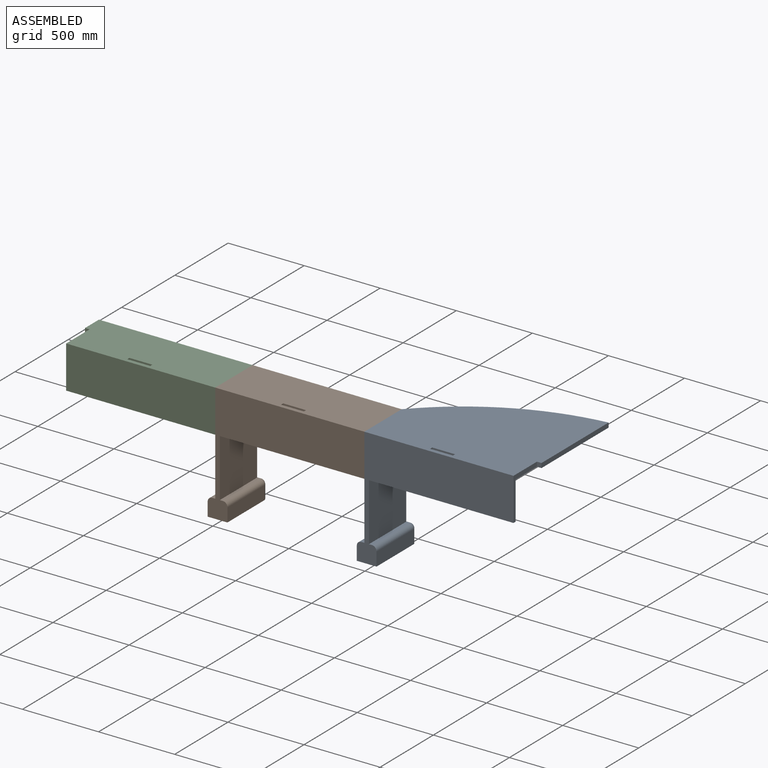
[diagram: assembled view]
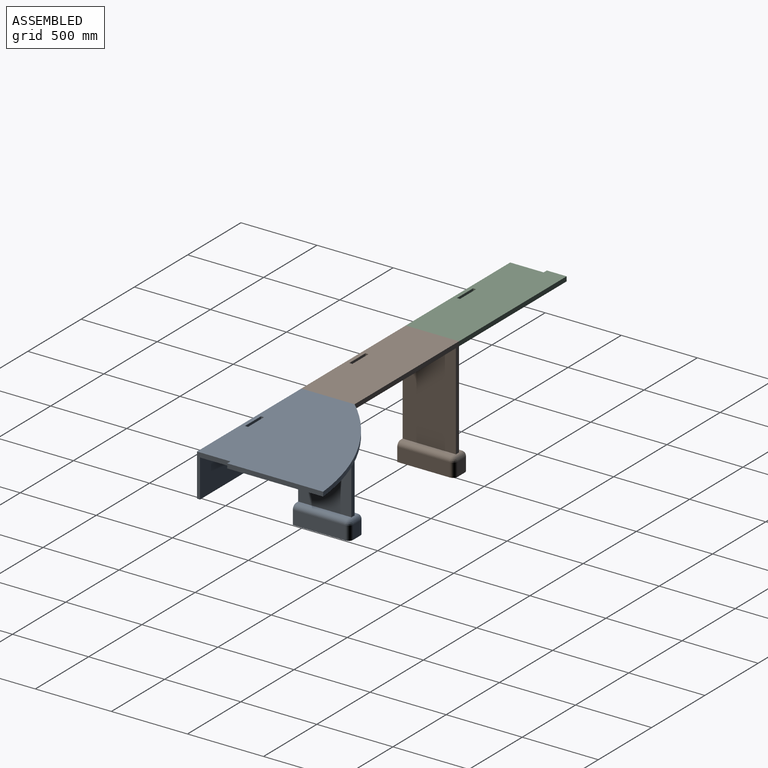
[diagram: assembled view, second angle]
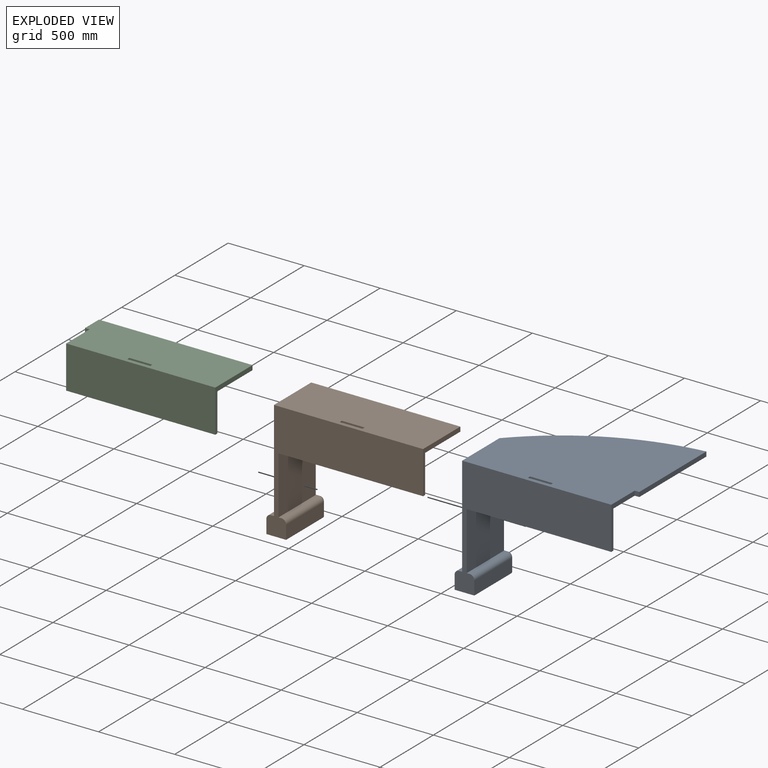
[diagram: exploded view]
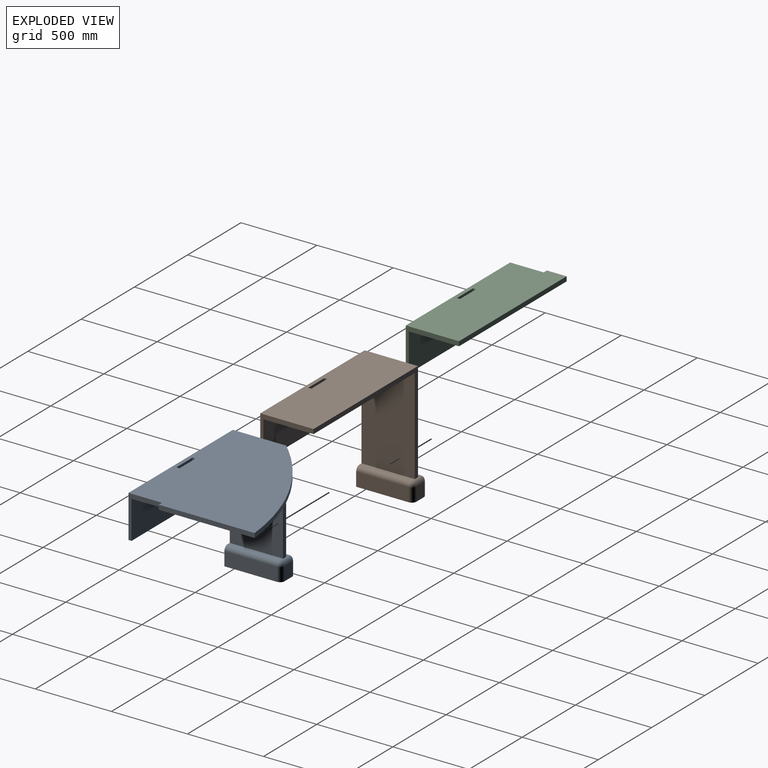
[diagram: exploded view, second angle]
ASSEMBLY  parts=3 mates=2
PART A: 29 faces, bbox 1060x850x780 mm
  f0: plane 345x20mm, normal (0,0,1), area 6900mm2, adj f2,f6,f22,f26
  f1: plane 630.42x30mm, normal (0,1,0), area 18912.6mm2, adj f2,f5,f8,f26
  f2: plane 660.42x350mm, normal (-1,0,0), area 231000.7mm2, adj f0,f1,f4,f6,f16,f26
  f3: plane 280x220mm, normal (1,0,0), area 11600mm2, adj f4,f5,f6,f14,f15,f17
  f4: plane 1010x850mm, normal (0,0,1), area 673926mm2, adj f2,f3,f6,f7,f10,f11,f12,f13
  f5: plane 1010x830mm, normal (0,0,-1), area 644426mm2, adj f1,f3,f7,f8,f10,f11,f12,f13
  f6: plane 1030x780mm, normal (0,-1,0), area 301013.7mm2, adj f0,f2,f3,f4,f8,f9,f14,f18
  f7: plane 630x30mm, normal (1,0,0), area 18900mm2, adj f4,f5,f16,f17
  f8: plane 630.42x350mm, normal (1,0,0), area 215500.7mm2, adj f1,f5,f6,f14,f15,f19,f26
  f9: plane 375x130mm, normal (0,0,-1), area 48363.7mm2, adj f6,f18,f20,f21,f23,f28
  f10: plane 150x30mm, normal (0,1,0), area 4500mm2, adj f4,f5,f11,f13
  f11: plane 30x20mm, normal (-1,0,0), area 600mm2, adj f4,f5,f10,f12
  f12: plane 150x30mm, normal (0,-1,0), area 4500mm2, adj f4,f5,f11,f13
  f13: plane 30x20mm, normal (1,0,0), area 600mm2, adj f4,f5,f10,f12
  f14: plane 950x20mm, normal (0,0,-1), area 19000mm2, adj f3,f6,f8,f15
  f15: plane 950x250mm, normal (0,1,0), area 237500mm2, adj f3,f5,f8,f14
  f16: cylinder r=1600mm len=1010mm, axis (0,0,1), area 34550.7mm2, adj f2,f4,f5,f7
  f17: plane 30x30mm, normal (0,-1,0), area 900mm2, adj f3,f4,f5,f7
  f18: plane 345x90mm, normal (1,0,0), area 31050mm2, adj f6,f9,f25,f28
  f19: plane 345x20mm, normal (0,0,1), area 6900mm2, adj f6,f8,f25,f26
  f20: plane 345x90mm, normal (-1,0,0), area 31050mm2, adj f6,f9,f22,f23
  f21: plane 90x70mm, normal (0,1,0), area 6300mm2, adj f9,f23,f26,f28
  f22: cylinder r=30mm len=345mm, axis (0,-1,0), area 16257.7mm2, adj f0,f6,f20,f24
  f23: cylinder r=30mm len=90mm, axis (0,0,-1), area 4241.2mm2, adj f9,f20,f21,f24
  f24: sphere r=30mm, area 1413.7mm2, adj f22,f23,f26
  f25: cylinder r=30mm len=345mm, axis (0,-1,0), area 16257.7mm2, adj f6,f18,f19,f27
  f26: cylinder r=30mm len=70mm, axis (-1,0,0), area 3148mm2, adj f0,f1,f2,f8,f19,f21,f24,f27
  f27: sphere r=30mm, area 1413.7mm2, adj f25,f26,f28
  f28: cylinder r=30mm len=90mm, axis (0,0,1), area 4241.2mm2, adj f9,f18,f21,f27
PART B: 26 faces, bbox 1030x375x780 mm
  f0: plane 345x20mm, normal (0,0,1), area 6900mm2, adj f6,f8,f19,f23
  f1: plane 630.42x350mm, normal (1,0,0), area 215500.7mm2, adj f2,f7,f8,f13,f14,f16,f23
  f2: plane 950x330mm, normal (0,0,-1), area 310500mm2, adj f1,f3,f7,f9,f10,f11,f12,f14
  f3: plane 350x280mm, normal (1,0,0), area 15500mm2, adj f2,f4,f7,f8,f13,f14
  f4: plane 980x350mm, normal (0,0,1), area 340000mm2, adj f3,f6,f7,f8,f9,f10,f11,f12
  f5: plane 375x130mm, normal (0,0,-1), area 48363.7mm2, adj f8,f15,f17,f18,f20,f25
  f6: plane 660.42x350mm, normal (-1,0,0), area 231000.7mm2, adj f0,f4,f7,f8,f23
  f7: plane 980x660.42mm, normal (0,1,0), area 48312.6mm2, adj f1,f2,f3,f4,f6,f23
  f8: plane 1030x780mm, normal (0,-1,0), area 301013.7mm2, adj f0,f1,f3,f4,f5,f6,f13,f15
  f9: plane 150x30mm, normal (0,1,0), area 4500mm2, adj f2,f4,f10,f12
  f10: plane 30x20mm, normal (-1,0,0), area 600mm2, adj f2,f4,f9,f11
  f11: plane 150x30mm, normal (0,-1,0), area 4500mm2, adj f2,f4,f10,f12
  f12: plane 30x20mm, normal (1,0,0), area 600mm2, adj f2,f4,f9,f11
  f13: plane 950x20mm, normal (0,0,-1), area 19000mm2, adj f1,f3,f8,f14
  f14: plane 950x250mm, normal (0,1,0), area 237500mm2, adj f1,f2,f3,f13
  f15: plane 345x90mm, normal (1,0,0), area 31050mm2, adj f5,f8,f22,f25
  f16: plane 345x20mm, normal (0,0,1), area 6900mm2, adj f1,f8,f22,f23
  f17: plane 345x90mm, normal (-1,0,0), area 31050mm2, adj f5,f8,f19,f20
  f18: plane 90x70mm, normal (0,1,0), area 6300mm2, adj f5,f20,f23,f25
  f19: cylinder r=30mm len=345mm, axis (0,-1,0), area 16257.7mm2, adj f0,f8,f17,f21
  f20: cylinder r=30mm len=90mm, axis (0,0,-1), area 4241.2mm2, adj f5,f17,f18,f21
  f21: sphere r=30mm, area 1413.7mm2, adj f19,f20,f23
  f22: cylinder r=30mm len=345mm, axis (0,-1,0), area 16257.7mm2, adj f8,f15,f16,f24
  f23: cylinder r=30mm len=70mm, axis (-1,0,0), area 3148mm2, adj f0,f1,f6,f7,f16,f18,f21,f24
  f24: sphere r=30mm, area 1413.7mm2, adj f22,f23,f25
  f25: cylinder r=30mm len=90mm, axis (0,0,1), area 4241.2mm2, adj f5,f15,f18,f24
PART C: 14 faces, bbox 1010x350x280 mm
  f0: plane 130x30mm, normal (-1,0,0), area 3900mm2, adj f1,f2,f3,f13
  f1: plane 1010x330mm, normal (0,0,-1), area 324300mm2, adj f0,f3,f5,f6,f7,f8,f10,f11
  f2: plane 1010x350mm, normal (0,0,1), area 343900mm2, adj f0,f3,f4,f5,f6,f7,f8,f11
  f3: plane 1010x30mm, normal (0,1,0), area 30300mm2, adj f0,f1,f2,f11
  f4: plane 980x280mm, normal (0,-1,0), area 274400mm2, adj f2,f9,f11,f12
  f5: plane 150x30mm, normal (0,1,0), area 4500mm2, adj f1,f2,f6,f8
  f6: plane 30x20mm, normal (-1,0,0), area 600mm2, adj f1,f2,f5,f7
  f7: plane 150x30mm, normal (0,-1,0), area 4500mm2, adj f1,f2,f6,f8
  f8: plane 30x20mm, normal (1,0,0), area 600mm2, adj f1,f2,f5,f7
  f9: plane 980x20mm, normal (0,0,-1), area 19600mm2, adj f4,f10,f11,f12
  f10: plane 980x250mm, normal (0,1,0), area 245000mm2, adj f1,f9,f11,f12
  f11: plane 350x280mm, normal (1,0,0), area 15500mm2, adj f1,f2,f3,f4,f9,f10
  f12: plane 280x220mm, normal (-1,0,0), area 11600mm2, adj f1,f2,f4,f9,f10,f13
  f13: plane 30x30mm, normal (0,-1,0), area 900mm2, adj f0,f1,f2,f12
PLACE A t=(3478.49,-1002.69,323.14)mm
PLACE B t=(1518.49,-1002.69,323.14)mm
PLACE C t=(508.49,-1002.69,323.14)mm
MATE fastened C.f2 <-> B.f4  axis (0,0,1) through (1518.49,-827.69,353.14)mm
MATE fastened B.f4 <-> A.f4  axis (0,0,1) through (2498.49,-827.69,353.14)mm
